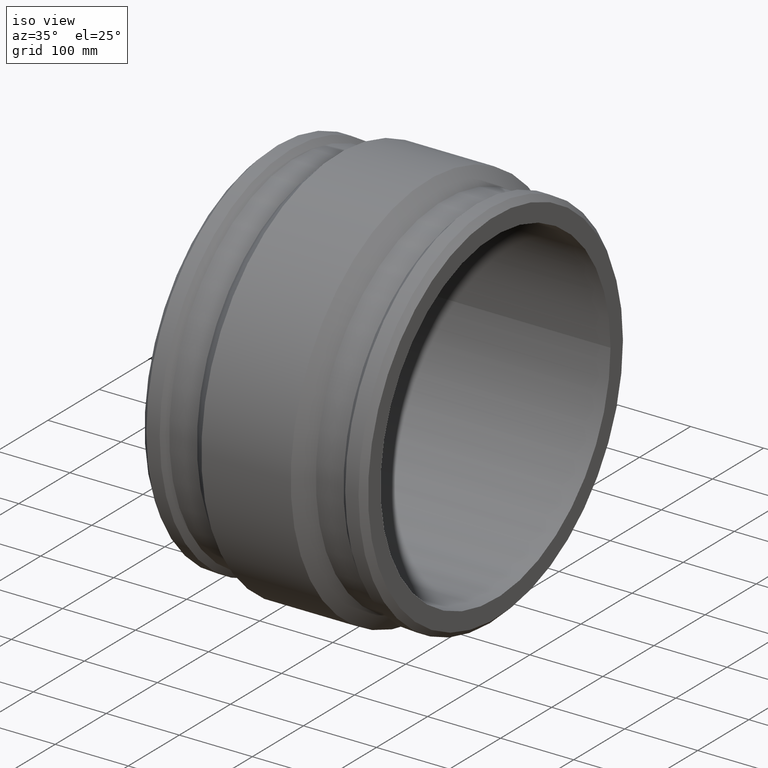
[diagram: clean part render]
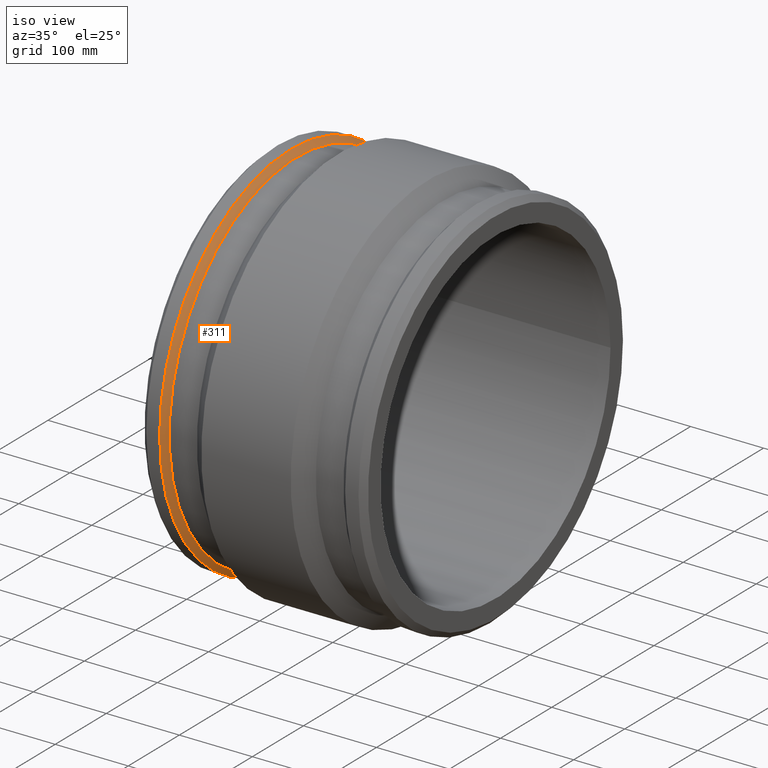
[diagram: same view with one face highlighted and labeled with its STEP entity id]
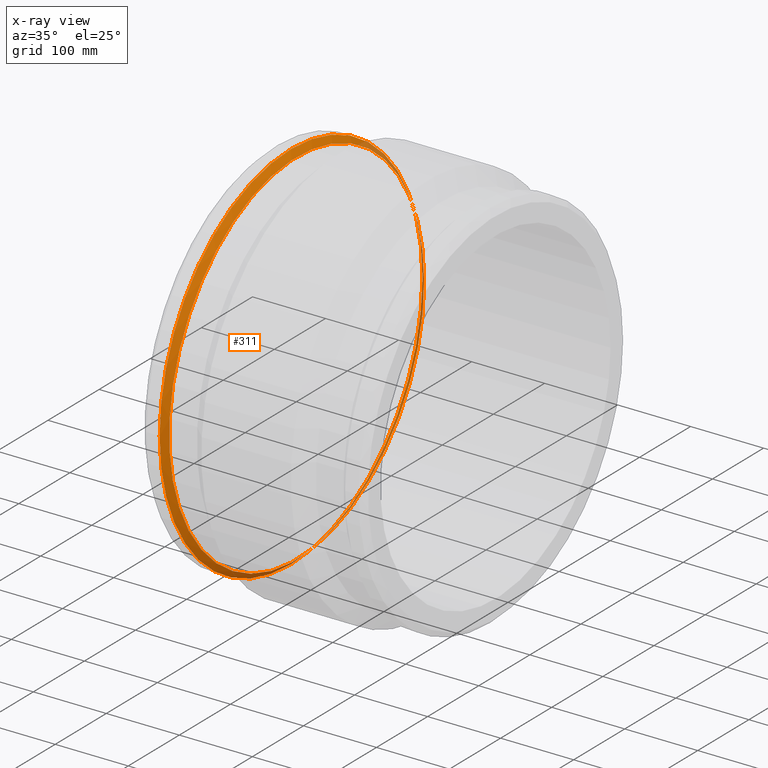
[diagram: x-ray of the same camera — body ghosted, the highlighted face saturated]
A machine part, iso view. The second image highlights one B-rep face of the part: STEP entity #311.
The next image is the same camera in x-ray: the body ghosted, the highlighted face saturated — about 13% of this face is hidden behind the body in this view.
In plain terms, the highlighted conical surface has half-angle 45 deg.
Its self-contained STEP definition (entity closure, byte-faithful):
#16=CONICAL_SURFACE('',#359,253.145,44.9999999999999);
#39=FACE_BOUND('',#124,.T.);
#81=FACE_OUTER_BOUND('',#123,.T.);
#123=EDGE_LOOP('',(#265));
#124=EDGE_LOOP('',(#266));
#158=CIRCLE('',#354,257.);
#161=CIRCLE('',#360,249.29);
#184=VERTEX_POINT('',#608);
#187=VERTEX_POINT('',#617);
#214=EDGE_CURVE('',#184,#184,#158,.T.);
#217=EDGE_CURVE('',#187,#187,#161,.T.);
#265=ORIENTED_EDGE('',*,*,#214,.T.);
#266=ORIENTED_EDGE('',*,*,#217,.F.);
#311=ADVANCED_FACE('',(#81,#39),#16,.T.);
#354=AXIS2_PLACEMENT_3D('',#609,#441,#442);
#359=AXIS2_PLACEMENT_3D('',#616,#451,#452);
#360=AXIS2_PLACEMENT_3D('',#618,#453,#454);
#441=DIRECTION('center_axis',(1.,1.83697019872103E-16,0.));
#442=DIRECTION('ref_axis',(0.,0.,-1.));
#451=DIRECTION('center_axis',(-1.,-1.83697019872103E-16,0.));
#452=DIRECTION('ref_axis',(-1.97372982155583E-16,1.,0.));
#453=DIRECTION('center_axis',(1.,1.83697019872103E-16,0.));
#454=DIRECTION('ref_axis',(0.,0.,-1.));
#608=CARTESIAN_POINT('',(-127.05,257.,0.));
#609=CARTESIAN_POINT('Origin',(-127.05,4.76693766568107E-15,0.));
#616=CARTESIAN_POINT('Origin',(-123.195,5.47508967728803E-15,0.));
#617=CARTESIAN_POINT('',(-119.34,249.29,0.));
#618=CARTESIAN_POINT('Origin',(-119.34,6.183241688895E-15,0.));